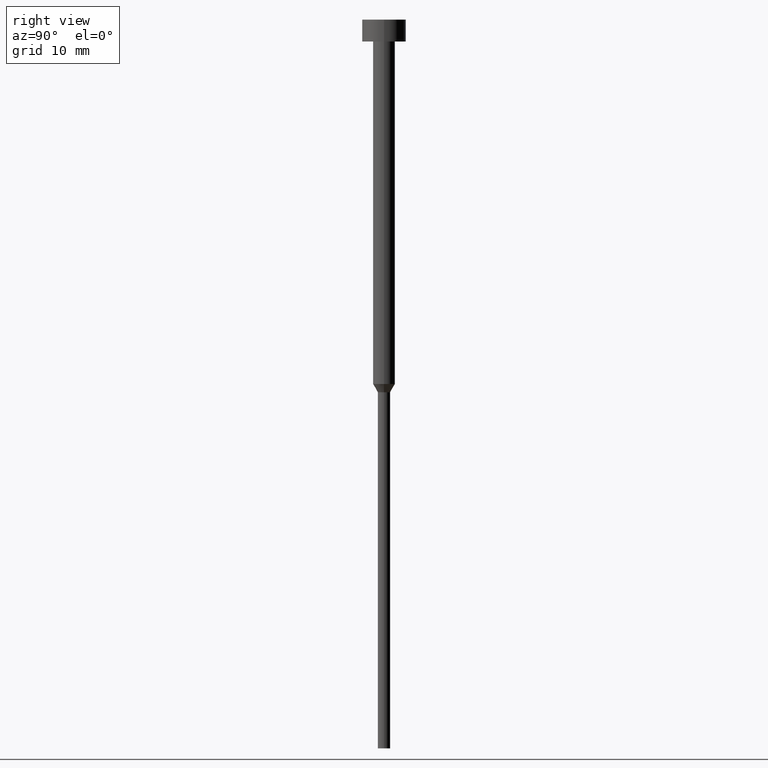
[diagram: clean part render]
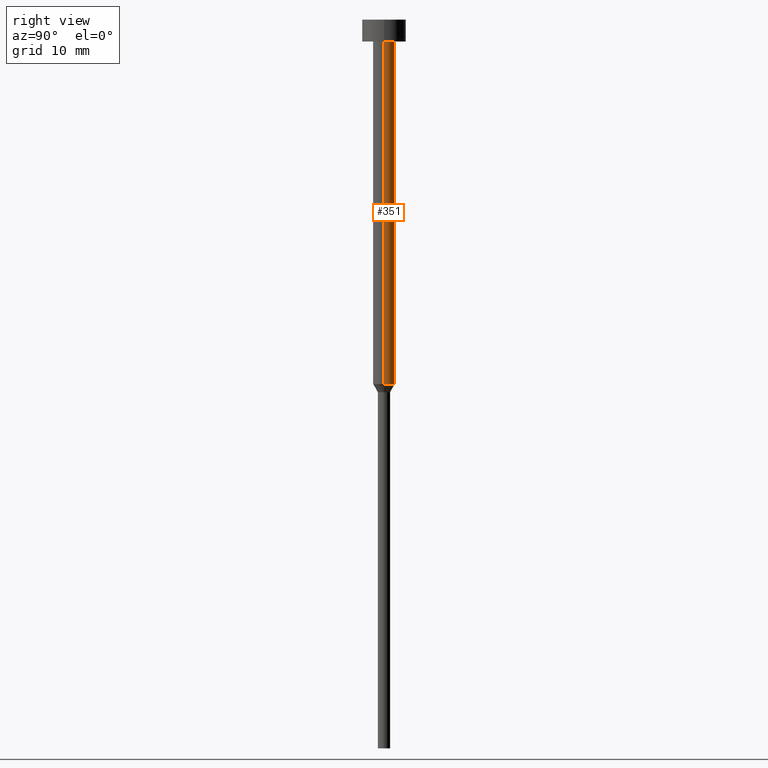
[diagram: same view with one face highlighted and labeled with its STEP entity id]
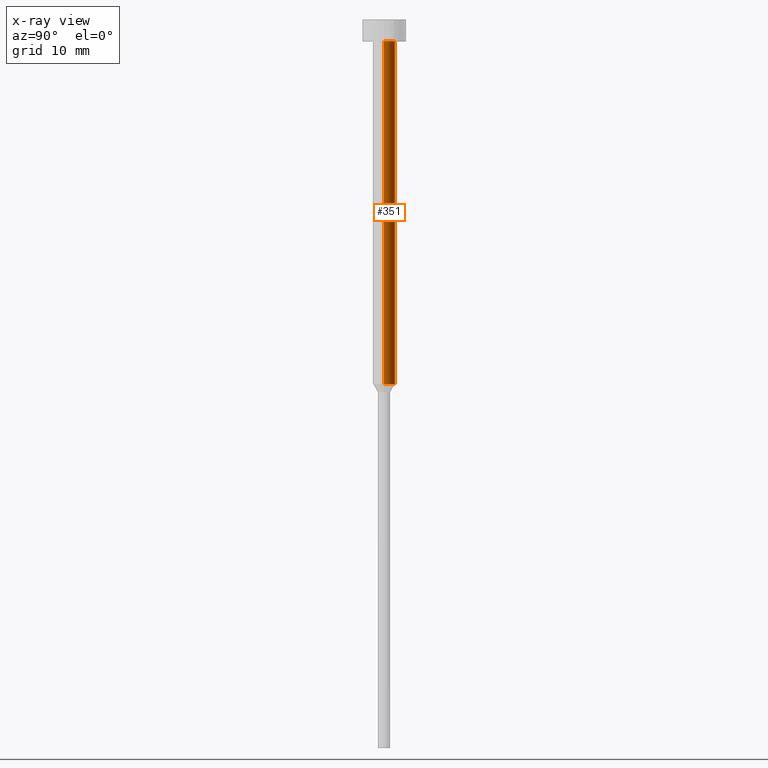
[diagram: x-ray of the same camera — body ghosted, the highlighted face saturated]
A machine part, right view. The second image highlights one B-rep face of the part: STEP entity #351.
The next image is the same camera in x-ray: the body ghosted, the highlighted face saturated — about 0% of this face is hidden behind the body in this view.
In plain terms, the highlighted cylindrical surface (edge-blend (fillet) strip) has radius 1.5 mm, axis along (-0, -0, 1).
Its self-contained STEP definition (entity closure, byte-faithful):
#11 = ORIENTED_EDGE ( 'NONE', *, *, #23, .T. ) ;
#16 = VERTEX_POINT ( 'NONE', #337 ) ;
#23 = EDGE_CURVE ( 'NONE', #16, #46, #120, .T. ) ;
#25 = LINE ( 'NONE', #275, #286 ) ;
#29 = DIRECTION ( 'NONE',  ( -0.000000000000000000, -0.000000000000000000, 1.000000000000000000 ) ) ;
#46 = VERTEX_POINT ( 'NONE', #91 ) ;
#65 = CYLINDRICAL_SURFACE ( 'NONE', #84, 1.500000000000000000 ) ;
#84 = AXIS2_PLACEMENT_3D ( 'NONE', #333, #98, #174 ) ;
#91 = CARTESIAN_POINT ( 'NONE',  ( -1.500000000000000000, 1.836970198721029934E-16, -3.000000000000000888 ) ) ;
#94 = EDGE_CURVE ( 'NONE', #340, #157, #25, .T. ) ;
#98 = DIRECTION ( 'NONE',  ( -0.000000000000000000, -0.000000000000000000, 1.000000000000000000 ) ) ;
#99 = VECTOR ( 'NONE', #334, 1000.000000000000000 ) ;
#106 = EDGE_CURVE ( 'NONE', #157, #46, #193, .T. ) ;
#117 = DIRECTION ( 'NONE',  ( 1.000000000000000000, 0.000000000000000000, 0.000000000000000000 ) ) ;
#119 = AXIS2_PLACEMENT_3D ( 'NONE', #226, #29, #323 ) ;
#120 = LINE ( 'NONE', #231, #99 ) ;
#121 = ORIENTED_EDGE ( 'NONE', *, *, #106, .F. ) ;
#135 = DIRECTION ( 'NONE',  ( -0.000000000000000000, -0.000000000000000000, 1.000000000000000000 ) ) ;
#141 = CARTESIAN_POINT ( 'NONE',  ( 0.000000000000000000, 0.000000000000000000, -3.000000000000000888 ) ) ;
#143 = CIRCLE ( 'NONE', #119, 1.500000000000000000 ) ;
#151 = ORIENTED_EDGE ( 'NONE', *, *, #94, .F. ) ;
#157 = VERTEX_POINT ( 'NONE', #272 ) ;
#174 = DIRECTION ( 'NONE',  ( 1.000000000000000000, 0.000000000000000000, 0.000000000000000000 ) ) ;
#182 = DIRECTION ( 'NONE',  ( -0.000000000000000000, -0.000000000000000000, 1.000000000000000000 ) ) ;
#193 = CIRCLE ( 'NONE', #346, 1.500000000000000000 ) ;
#217 = EDGE_LOOP ( 'NONE', ( #236, #11, #121, #151 ) ) ;
#226 = CARTESIAN_POINT ( 'NONE',  ( 0.000000000000000000, 0.000000000000000000, -50.00000000000000000 ) ) ;
#231 = CARTESIAN_POINT ( 'NONE',  ( -1.500000000000000000, 1.836970198721029934E-16, 0.000000000000000000 ) ) ;
#236 = ORIENTED_EDGE ( 'NONE', *, *, #305, .T. ) ;
#272 = CARTESIAN_POINT ( 'NONE',  ( 1.500000000000000000, 0.000000000000000000, -3.000000000000000888 ) ) ;
#275 = CARTESIAN_POINT ( 'NONE',  ( 1.500000000000000000, 0.000000000000000000, 0.000000000000000000 ) ) ;
#281 = FACE_OUTER_BOUND ( 'NONE', #217, .T. ) ;
#286 = VECTOR ( 'NONE', #135, 1000.000000000000000 ) ;
#292 = CARTESIAN_POINT ( 'NONE',  ( 1.500000000000000000, 0.000000000000000000, -50.00000000000000000 ) ) ;
#305 = EDGE_CURVE ( 'NONE', #340, #16, #143, .T. ) ;
#323 = DIRECTION ( 'NONE',  ( 1.000000000000000000, 0.000000000000000000, 0.000000000000000000 ) ) ;
#333 = CARTESIAN_POINT ( 'NONE',  ( 0.000000000000000000, 0.000000000000000000, 0.000000000000000000 ) ) ;
#334 = DIRECTION ( 'NONE',  ( -0.000000000000000000, -0.000000000000000000, 1.000000000000000000 ) ) ;
#337 = CARTESIAN_POINT ( 'NONE',  ( -1.500000000000000000, 1.836970198721029934E-16, -50.00000000000000000 ) ) ;
#340 = VERTEX_POINT ( 'NONE', #292 ) ;
#346 = AXIS2_PLACEMENT_3D ( 'NONE', #141, #182, #117 ) ;
#351 = ADVANCED_FACE ( 'NONE', ( #281 ), #65, .T. ) ;